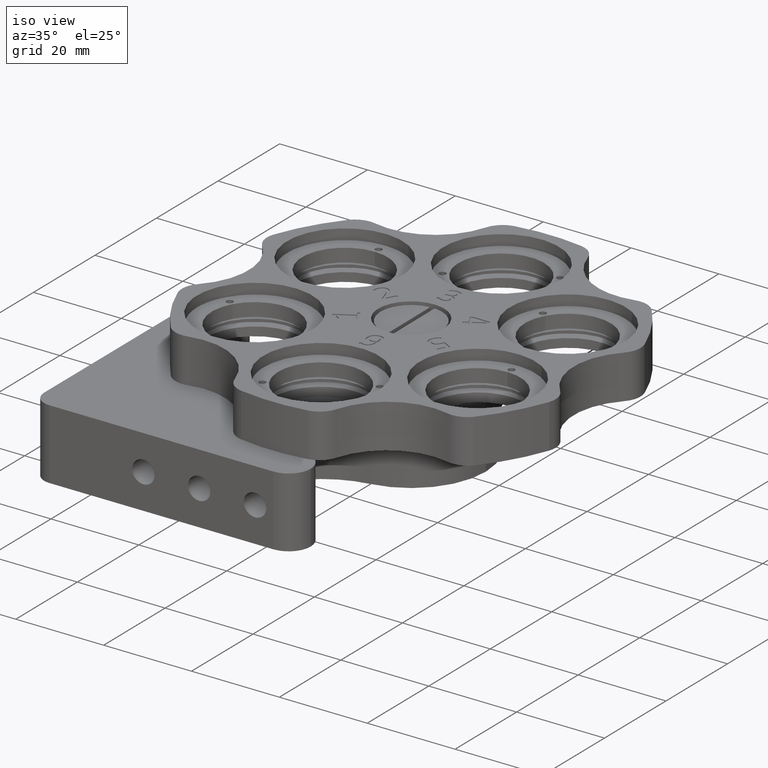
[diagram: clean part render]
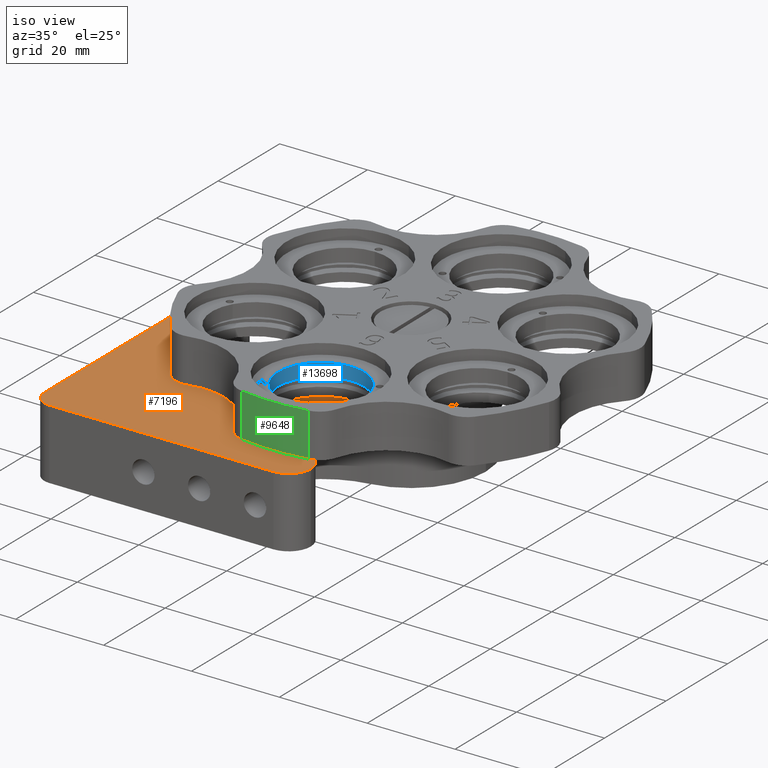
[diagram: same view with three faces highlighted in distinct colors, each labeled with its STEP entity id]
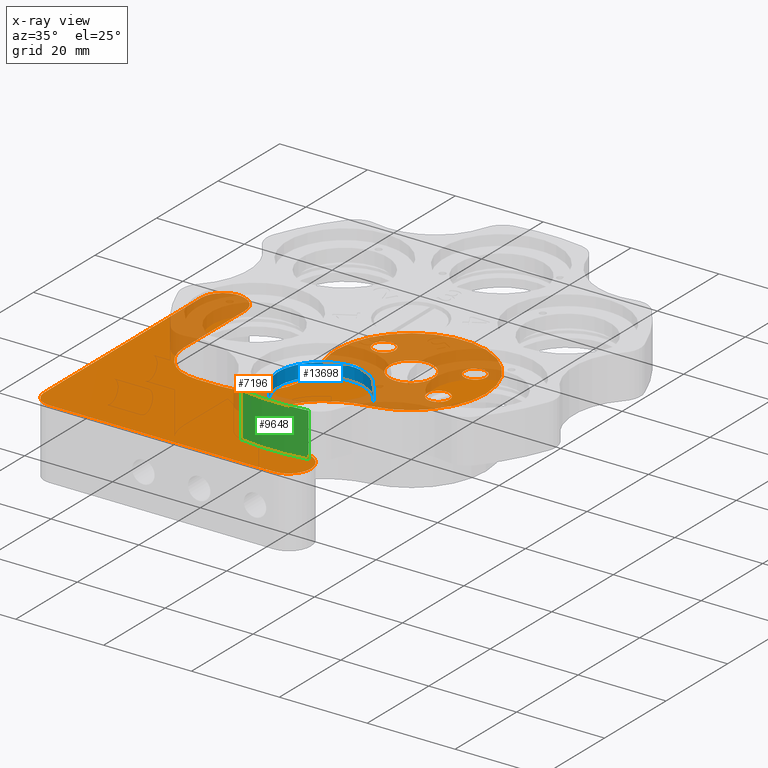
[diagram: x-ray of the same camera — body ghosted, the three highlighted faces saturated]
A machine part, iso view with three faces highlighted in distinct colors.
The next image is the same camera in x-ray (body ghosted, the three faces saturated) — at least one of them is partly hidden behind the body in this view.
Their STEP definitions:

[orange] entity #7196 — the highlighted planar face has unit normal (-0, 0, 1).
#22 = CIRCLE ( 'NONE', #4435, 11.00000000000001100 ) ;
#60 = CIRCLE ( 'NONE', #6774, 2.499999999999988500 ) ;
#175 = EDGE_CURVE ( 'NONE', #7244, #2872, #6194, .T. ) ;
#193 = CARTESIAN_POINT ( 'NONE',  ( 1.431146867680865900E-014, 2.135878279796443700E-014, 0.0000000000000000000 ) ) ;
#205 = VECTOR ( 'NONE', #5074, 1000.000000000000000 ) ;
#259 = VERTEX_POINT ( 'NONE', #12646 ) ;
#303 = ORIENTED_EDGE ( 'NONE', *, *, #8462, .T. ) ;
#333 = EDGE_CURVE ( 'NONE', #9003, #8045, #10346, .T. ) ;
#477 = AXIS2_PLACEMENT_3D ( 'NONE', #5836, #10488, #8127 ) ;
#486 = VERTEX_POINT ( 'NONE', #4787 ) ;
#516 = ORIENTED_EDGE ( 'NONE', *, *, #10180, .T. ) ;
#600 = CIRCLE ( 'NONE', #6399, 2.499999999999988500 ) ;
#641 = ORIENTED_EDGE ( 'NONE', *, *, #10589, .F. ) ;
#666 = ORIENTED_EDGE ( 'NONE', *, *, #2944, .T. ) ;
#691 = CARTESIAN_POINT ( 'NONE',  ( -30.80000000000005800, -25.64999999999993500, 0.0000000000000000000 ) ) ;
#693 = CARTESIAN_POINT ( 'NONE',  ( -50.79999999999999700, -46.79999999999999700, 0.0000000000000000000 ) ) ;
#767 = LINE ( 'NONE', #1230, #205 ) ;
#797 = VERTEX_POINT ( 'NONE', #5504 ) ;
#836 = DIRECTION ( 'NONE',  ( 1.000000000000000000, 0.0000000000000000000, 0.0000000000000000000 ) ) ;
#844 = CIRCLE ( 'NONE', #3546, 17.00000000000003600 ) ;
#898 = VERTEX_POINT ( 'NONE', #8040 ) ;
#906 = AXIS2_PLACEMENT_3D ( 'NONE', #5531, #10281, #9131 ) ;
#959 = DIRECTION ( 'NONE',  ( 1.000000000000000000, 0.0000000000000000000, 0.0000000000000000000 ) ) ;
#997 = DIRECTION ( 'NONE',  ( -0.0000000000000000000, 0.0000000000000000000, 1.000000000000000000 ) ) ;
#1169 = EDGE_CURVE ( 'NONE', #259, #797, #7308, .T. ) ;
#1191 = CIRCLE ( 'NONE', #10028, 2.499999999999988500 ) ;
#1230 = CARTESIAN_POINT ( 'NONE',  ( -16.91161726340155300, -40.80000000000001100, 0.0000000000000000000 ) ) ;
#1338 = AXIS2_PLACEMENT_3D ( 'NONE', #10203, #12676, #11510 ) ;
#1425 = CARTESIAN_POINT ( 'NONE',  ( 12.89230484541324500, 6.000000000000015100, 1.249098480898822200E-015 ) ) ;
#1495 = ORIENTED_EDGE ( 'NONE', *, *, #7318, .F. ) ;
#1554 = DIRECTION ( 'NONE',  ( 1.000000000000000000, 0.0000000000000000000, 0.0000000000000000000 ) ) ;
#1564 = DIRECTION ( 'NONE',  ( -0.0000000000000000000, 0.0000000000000000000, 1.000000000000000000 ) ) ;
#1586 = VERTEX_POINT ( 'NONE', #2921 ) ;
#1594 = DIRECTION ( 'NONE',  ( -0.0000000000000000000, 0.0000000000000000000, 1.000000000000000000 ) ) ;
#1637 = VERTEX_POINT ( 'NONE', #13608 ) ;
#1942 = EDGE_CURVE ( 'NONE', #3486, #2872, #767, .T. ) ;
#1953 = FACE_BOUND ( 'NONE', #4461, .T. ) ;
#2058 = EDGE_LOOP ( 'NONE', ( #5610, #2608 ) ) ;
#2144 = DIRECTION ( 'NONE',  ( -0.0000000000000000000, -0.0000000000000000000, 1.000000000000000000 ) ) ;
#2184 = DIRECTION ( 'NONE',  ( 1.000000000000000000, 0.0000000000000000000, 0.0000000000000000000 ) ) ;
#2264 = DIRECTION ( 'NONE',  ( 1.088453945710937700E-015, -1.000000000000000000, 0.0000000000000000000 ) ) ;
#2266 = CIRCLE ( 'NONE', #14074, 5.000000000000000900 ) ;
#2271 = CARTESIAN_POINT ( 'NONE',  ( 17.00000000000005000, 2.135878279796443700E-014, 0.0000000000000000000 ) ) ;
#2424 = ORIENTED_EDGE ( 'NONE', *, *, #175, .F. ) ;
#2453 = AXIS2_PLACEMENT_3D ( 'NONE', #12367, #13462, #3938 ) ;
#2593 = ORIENTED_EDGE ( 'NONE', *, *, #4320, .T. ) ;
#2608 = ORIENTED_EDGE ( 'NONE', *, *, #5533, .F. ) ;
#2683 = DIRECTION ( 'NONE',  ( 1.000000000000000000, 0.0000000000000000000, 0.0000000000000000000 ) ) ;
#2735 = CARTESIAN_POINT ( 'NONE',  ( -11.00000000000002300, -30.79999999999998600, 0.0000000000000000000 ) ) ;
#2741 = VERTEX_POINT ( 'NONE', #3510 ) ;
#2794 = VERTEX_POINT ( 'NONE', #3399 ) ;
#2813 = CARTESIAN_POINT ( 'NONE',  ( -34.33791815153536900, -13.78068855385882700, 0.0000000000000000000 ) ) ;
#2872 = VERTEX_POINT ( 'NONE', #4984 ) ;
#2921 = CARTESIAN_POINT ( 'NONE',  ( -7.892304845413268500, 6.000000000000015100, 1.249098480898822200E-015 ) ) ;
#2930 = CIRCLE ( 'NONE', #906, 5.000000000000000900 ) ;
#2944 = EDGE_CURVE ( 'NONE', #10674, #7579, #14895, .T. ) ;
#2949 = ORIENTED_EDGE ( 'NONE', *, *, #333, .T. ) ;
#2983 = LINE ( 'NONE', #8481, #15439 ) ;
#3107 = LINE ( 'NONE', #4755, #15186 ) ;
#3328 = CARTESIAN_POINT ( 'NONE',  ( -46.80000000000000400, -50.79999999999999000, 0.0000000000000000000 ) ) ;
#3337 = ORIENTED_EDGE ( 'NONE', *, *, #14518, .T. ) ;
#3383 = CARTESIAN_POINT ( 'NONE',  ( -25.37999999999998500, -25.64999999999994200, 0.0000000000000000000 ) ) ;
#3399 = CARTESIAN_POINT ( 'NONE',  ( -15.77688131286762600, -6.331667713935137200, 0.0000000000000000000 ) ) ;
#3404 = AXIS2_PLACEMENT_3D ( 'NONE', #9539, #997, #2184 ) ;
#3411 = CARTESIAN_POINT ( 'NONE',  ( 0.0000000000000000000, 0.0000000000000000000, 0.0000000000000000000 ) ) ;
#3442 = CARTESIAN_POINT ( 'NONE',  ( -40.80000000000005400, -91.60983450373431900, 0.0000000000000000000 ) ) ;
#3486 = VERTEX_POINT ( 'NONE', #11509 ) ;
#3510 = CARTESIAN_POINT ( 'NONE',  ( -5.000000000000000900, 0.0000000000000000000, 0.0000000000000000000 ) ) ;
#3546 = AXIS2_PLACEMENT_3D ( 'NONE', #193, #11105, #7422 ) ;
#3835 = DIRECTION ( 'NONE',  ( -0.0000000000000000000, -0.0000000000000000000, 1.000000000000000000 ) ) ;
#3869 = DIRECTION ( 'NONE',  ( -0.0000000000000000000, -0.0000000000000000000, 1.000000000000000000 ) ) ;
#3938 = DIRECTION ( 'NONE',  ( 1.000000000000000000, 0.0000000000000000000, 0.0000000000000000000 ) ) ;
#3964 = AXIS2_PLACEMENT_3D ( 'NONE', #8133, #6962, #836 ) ;
#4017 = ORIENTED_EDGE ( 'NONE', *, *, #13281, .F. ) ;
#4036 = DIRECTION ( 'NONE',  ( 1.000000000000000000, 0.0000000000000000000, 0.0000000000000000000 ) ) ;
#4046 = VECTOR ( 'NONE', #14660, 1000.000000000000000 ) ;
#4048 = AXIS2_PLACEMENT_3D ( 'NONE', #6785, #10729, #10836 ) ;
#4218 = DIRECTION ( 'NONE',  ( -0.0000000000000000000, -0.0000000000000000000, 1.000000000000000000 ) ) ;
#4219 = FACE_OUTER_BOUND ( 'NONE', #11861, .T. ) ;
#4265 = DIRECTION ( 'NONE',  ( 1.000000000000000000, 0.0000000000000000000, 0.0000000000000000000 ) ) ;
#4269 = DIRECTION ( 'NONE',  ( -0.0000000000000000000, 0.0000000000000000000, 1.000000000000000000 ) ) ;
#4270 = CIRCLE ( 'NONE', #10104, 19.99999999999996100 ) ;
#4275 = CARTESIAN_POINT ( 'NONE',  ( -25.37999999999998500, -14.64999999999992400, 0.0000000000000000000 ) ) ;
#4320 = EDGE_CURVE ( 'NONE', #8045, #13151, #14794, .T. ) ;
#4435 = AXIS2_PLACEMENT_3D ( 'NONE', #6996, #10527, #8224 ) ;
#4461 = EDGE_LOOP ( 'NONE', ( #15182, #516 ) ) ;
#4496 = ORIENTED_EDGE ( 'NONE', *, *, #11255, .F. ) ;
#4693 = CIRCLE ( 'NONE', #8846, 11.00000000000001600 ) ;
#4752 = CARTESIAN_POINT ( 'NONE',  ( -11.00000000000002300, -91.60983450373431900, 0.0000000000000000000 ) ) ;
#4755 = CARTESIAN_POINT ( 'NONE',  ( -16.91161726340140300, -25.64999999999994900, 0.0000000000000000000 ) ) ;
#4787 = CARTESIAN_POINT ( 'NONE',  ( -14.33791815153540700, -13.78068855385882700, 0.0000000000000000000 ) ) ;
#4805 = EDGE_CURVE ( 'NONE', #10177, #1637, #1191, .T. ) ;
#4984 = CARTESIAN_POINT ( 'NONE',  ( -1.000000000000021800, -40.79999999999999000, 0.0000000000000000000 ) ) ;
#4994 = ORIENTED_EDGE ( 'NONE', *, *, #9060, .T. ) ;
#5074 = DIRECTION ( 'NONE',  ( -1.000000000000000000, -1.334402673828312100E-015, 0.0000000000000000000 ) ) ;
#5133 = CARTESIAN_POINT ( 'NONE',  ( -10.39230484541325700, 6.000000000000015100, 1.249098480898822200E-015 ) ) ;
#5504 = CARTESIAN_POINT ( 'NONE',  ( -50.80000000000005400, 4.200000000000009100, 0.0000000000000000000 ) ) ;
#5531 = CARTESIAN_POINT ( 'NONE',  ( 0.0000000000000000000, 0.0000000000000000000, 0.0000000000000000000 ) ) ;
#5533 = EDGE_CURVE ( 'NONE', #13282, #1586, #600, .T. ) ;
#5610 = ORIENTED_EDGE ( 'NONE', *, *, #14614, .F. ) ;
#5623 = EDGE_CURVE ( 'NONE', #7244, #12718, #7400, .T. ) ;
#5713 = EDGE_CURVE ( 'NONE', #898, #8850, #9465, .T. ) ;
#5741 = ORIENTED_EDGE ( 'NONE', *, *, #1169, .T. ) ;
#5832 = ORIENTED_EDGE ( 'NONE', *, *, #12938, .F. ) ;
#5836 = CARTESIAN_POINT ( 'NONE',  ( 4.199999999999981500, -45.79999999999999000, 0.0000000000000000000 ) ) ;
#5929 = CARTESIAN_POINT ( 'NONE',  ( 5.000000000000000900, 6.123233995736767300E-016, 0.0000000000000000000 ) ) ;
#5973 = ORIENTED_EDGE ( 'NONE', *, *, #10959, .F. ) ;
#6133 = CIRCLE ( 'NONE', #13525, 9.999999999999998200 ) ;
#6194 = CIRCLE ( 'NONE', #6647, 10.00000000000000200 ) ;
#6277 = FACE_BOUND ( 'NONE', #8921, .T. ) ;
#6304 = CARTESIAN_POINT ( 'NONE',  ( -10.39230484541325700, -6.000000000000015100, 1.249098480898822200E-015 ) ) ;
#6342 = ORIENTED_EDGE ( 'NONE', *, *, #12876, .T. ) ;
#6399 = AXIS2_PLACEMENT_3D ( 'NONE', #10226, #4218, #9076 ) ;
#6515 = DIRECTION ( 'NONE',  ( -0.0000000000000000000, -0.0000000000000000000, 1.000000000000000000 ) ) ;
#6523 = EDGE_CURVE ( 'NONE', #7909, #12734, #3107, .T. ) ;
#6559 = CARTESIAN_POINT ( 'NONE',  ( 4.199999999999978000, -50.79999999999997600, 0.0000000000000000000 ) ) ;
#6571 = AXIS2_PLACEMENT_3D ( 'NONE', #8955, #6515, #1554 ) ;
#6637 = VECTOR ( 'NONE', #13260, 1000.000000000000000 ) ;
#6647 = AXIS2_PLACEMENT_3D ( 'NONE', #9902, #1564, #2683 ) ;
#6723 = CARTESIAN_POINT ( 'NONE',  ( 12.89230484541324500, -6.000000000000015100, 1.249098480898822200E-015 ) ) ;
#6743 = EDGE_LOOP ( 'NONE', ( #4017, #7119 ) ) ;
#6774 = AXIS2_PLACEMENT_3D ( 'NONE', #11084, #3869, #12302 ) ;
#6785 = CARTESIAN_POINT ( 'NONE',  ( -45.80000000000005400, 4.200000000000017100, 0.0000000000000000000 ) ) ;
#6962 = DIRECTION ( 'NONE',  ( -0.0000000000000000000, 0.0000000000000000000, 1.000000000000000000 ) ) ;
#6996 = CARTESIAN_POINT ( 'NONE',  ( -0.002681564368387998100, -29.29999999999997900, 0.0000000000000000000 ) ) ;
#7119 = ORIENTED_EDGE ( 'NONE', *, *, #5713, .F. ) ;
#7196 = ADVANCED_FACE ( 'NONE', ( #6277, #15538, #11943, #15159, #1953, #4219 ), #8759, .T. ) ;
#7244 = VERTEX_POINT ( 'NONE', #2735 ) ;
#7288 = DIRECTION ( 'NONE',  ( -1.000000000000000000, 1.280238727658143600E-015, 0.0000000000000000000 ) ) ;
#7308 = CIRCLE ( 'NONE', #4048, 4.999999999999997300 ) ;
#7318 = EDGE_CURVE ( 'NONE', #10674, #13855, #13444, .T. ) ;
#7400 = LINE ( 'NONE', #4752, #6637 ) ;
#7422 = DIRECTION ( 'NONE',  ( 1.000000000000000000, 0.0000000000000000000, 0.0000000000000000000 ) ) ;
#7546 = VERTEX_POINT ( 'NONE', #5929 ) ;
#7579 = VERTEX_POINT ( 'NONE', #2271 ) ;
#7748 = DIRECTION ( 'NONE',  ( -0.0000000000000000000, 0.0000000000000000000, 1.000000000000000000 ) ) ;
#7749 = DIRECTION ( 'NONE',  ( 1.000000000000000000, 0.0000000000000000000, 0.0000000000000000000 ) ) ;
#7753 = CIRCLE ( 'NONE', #13345, 17.00000000000003600 ) ;
#7820 = AXIS2_PLACEMENT_3D ( 'NONE', #6304, #3835, #12271 ) ;
#7886 = CARTESIAN_POINT ( 'NONE',  ( -14.43143337034554600, -15.71249176750572500, 0.0000000000000000000 ) ) ;
#7909 = VERTEX_POINT ( 'NONE', #3383 ) ;
#7927 = ORIENTED_EDGE ( 'NONE', *, *, #4805, .F. ) ;
#8040 = CARTESIAN_POINT ( 'NONE',  ( -12.89230484541324500, -6.000000000000015100, 1.249098480898822200E-015 ) ) ;
#8045 = VERTEX_POINT ( 'NONE', #3328 ) ;
#8127 = DIRECTION ( 'NONE',  ( 1.000000000000000000, 0.0000000000000000000, 0.0000000000000000000 ) ) ;
#8133 = CARTESIAN_POINT ( 'NONE',  ( -34.33791815153536900, -13.78068855385882700, 0.0000000000000000000 ) ) ;
#8224 = DIRECTION ( 'NONE',  ( 1.000000000000000000, 0.0000000000000000000, 0.0000000000000000000 ) ) ;
#8239 = VECTOR ( 'NONE', #15422, 1000.000000000000000 ) ;
#8339 = DIRECTION ( 'NONE',  ( 0.0000000000000000000, 0.0000000000000000000, -1.000000000000000000 ) ) ;
#8369 = ORIENTED_EDGE ( 'NONE', *, *, #1942, .T. ) ;
#8434 = EDGE_LOOP ( 'NONE', ( #5973, #4496 ) ) ;
#8462 = EDGE_CURVE ( 'NONE', #11674, #3486, #11551, .T. ) ;
#8481 = CARTESIAN_POINT ( 'NONE',  ( -50.79999999999994700, -91.60983450373436200, 0.0000000000000000000 ) ) ;
#8595 = ORIENTED_EDGE ( 'NONE', *, *, #6523, .T. ) ;
#8605 = ORIENTED_EDGE ( 'NONE', *, *, #9784, .F. ) ;
#8744 = CIRCLE ( 'NONE', #2453, 2.499999999999988500 ) ;
#8759 = PLANE ( 'NONE',  #14611 ) ;
#8846 = AXIS2_PLACEMENT_3D ( 'NONE', #4275, #10282, #15086 ) ;
#8850 = VERTEX_POINT ( 'NONE', #10477 ) ;
#8881 = EDGE_CURVE ( 'NONE', #13855, #12718, #22, .T. ) ;
#8921 = EDGE_LOOP ( 'NONE', ( #7927, #641 ) ) ;
#8939 = VERTEX_POINT ( 'NONE', #14475 ) ;
#8955 = CARTESIAN_POINT ( 'NONE',  ( 10.39230484541325700, 6.000000000000015100, 1.249098480898822200E-015 ) ) ;
#9003 = VERTEX_POINT ( 'NONE', #693 ) ;
#9060 = EDGE_CURVE ( 'NONE', #13151, #11674, #13580, .T. ) ;
#9076 = DIRECTION ( 'NONE',  ( 1.000000000000000000, 0.0000000000000000000, 0.0000000000000000000 ) ) ;
#9131 = DIRECTION ( 'NONE',  ( -1.000000000000000000, 0.0000000000000000000, 0.0000000000000000000 ) ) ;
#9342 = ORIENTED_EDGE ( 'NONE', *, *, #8881, .F. ) ;
#9381 = VERTEX_POINT ( 'NONE', #6723 ) ;
#9465 = CIRCLE ( 'NONE', #7820, 2.499999999999988500 ) ;
#9539 = CARTESIAN_POINT ( 'NONE',  ( 4.199999999999981500, -45.79999999999999000, 0.0000000000000000000 ) ) ;
#9647 = EDGE_CURVE ( 'NONE', #259, #10569, #10298, .T. ) ;
#9741 = AXIS2_PLACEMENT_3D ( 'NONE', #5133, #14515, #13664 ) ;
#9784 = EDGE_CURVE ( 'NONE', #486, #2794, #4270, .T. ) ;
#9877 = AXIS2_PLACEMENT_3D ( 'NONE', #10220, #7748, #10170 ) ;
#9902 = CARTESIAN_POINT ( 'NONE',  ( -1.000000000000024200, -30.79999999999998600, 0.0000000000000000000 ) ) ;
#10005 = DIRECTION ( 'NONE',  ( 1.000000000000000000, 0.0000000000000000000, 0.0000000000000000000 ) ) ;
#10028 = AXIS2_PLACEMENT_3D ( 'NONE', #11573, #14006, #4265 ) ;
#10086 = EDGE_CURVE ( 'NONE', #10569, #12734, #6133, .T. ) ;
#10104 = AXIS2_PLACEMENT_3D ( 'NONE', #2813, #1594, #4036 ) ;
#10170 = DIRECTION ( 'NONE',  ( 1.000000000000000000, 0.0000000000000000000, 0.0000000000000000000 ) ) ;
#10177 = VERTEX_POINT ( 'NONE', #1425 ) ;
#10180 = EDGE_CURVE ( 'NONE', #7546, #2741, #2930, .T. ) ;
#10203 = CARTESIAN_POINT ( 'NONE',  ( 1.431146867680865900E-014, 2.135878279796443700E-014, 0.0000000000000000000 ) ) ;
#10220 = CARTESIAN_POINT ( 'NONE',  ( -46.80000000000000400, -46.79999999999999700, 0.0000000000000000000 ) ) ;
#10221 = CARTESIAN_POINT ( 'NONE',  ( 5.219492312476295300, -36.62999999999998800, 0.0000000000000000000 ) ) ;
#10226 = CARTESIAN_POINT ( 'NONE',  ( -10.39230484541325700, 6.000000000000015100, 1.249098480898822200E-015 ) ) ;
#10281 = DIRECTION ( 'NONE',  ( 0.0000000000000000000, 0.0000000000000000000, -1.000000000000000000 ) ) ;
#10282 = DIRECTION ( 'NONE',  ( -0.0000000000000000000, 0.0000000000000000000, 1.000000000000000000 ) ) ;
#10298 = LINE ( 'NONE', #3442, #8239 ) ;
#10346 = CIRCLE ( 'NONE', #9877, 3.999999999999996400 ) ;
#10477 = CARTESIAN_POINT ( 'NONE',  ( -7.892304845413268500, -6.000000000000015100, 1.249098480898822200E-015 ) ) ;
#10480 = EDGE_CURVE ( 'NONE', #14132, #2794, #844, .T. ) ;
#10488 = DIRECTION ( 'NONE',  ( -0.0000000000000000000, 0.0000000000000000000, 1.000000000000000000 ) ) ;
#10527 = DIRECTION ( 'NONE',  ( -0.0000000000000000000, 0.0000000000000000000, 1.000000000000000000 ) ) ;
#10568 = CARTESIAN_POINT ( 'NONE',  ( 2.398145116543167100, -16.83000000000002000, 0.0000000000000000000 ) ) ;
#10569 = VERTEX_POINT ( 'NONE', #13512 ) ;
#10572 = CIRCLE ( 'NONE', #3964, 19.99999999999996100 ) ;
#10589 = EDGE_CURVE ( 'NONE', #1637, #10177, #12552, .T. ) ;
#10595 = DIRECTION ( 'NONE',  ( 1.000000000000000000, 0.0000000000000000000, 0.0000000000000000000 ) ) ;
#10674 = VERTEX_POINT ( 'NONE', #10568 ) ;
#10729 = DIRECTION ( 'NONE',  ( -0.0000000000000000000, 0.0000000000000000000, 1.000000000000000000 ) ) ;
#10790 = DIRECTION ( 'NONE',  ( -1.000000000000000000, 0.0000000000000000000, 0.0000000000000000000 ) ) ;
#10836 = DIRECTION ( 'NONE',  ( 1.000000000000000000, 0.0000000000000000000, 0.0000000000000000000 ) ) ;
#10852 = CARTESIAN_POINT ( 'NONE',  ( 9.199999999999979700, -45.79999999999999000, 0.0000000000000000000 ) ) ;
#10946 = CARTESIAN_POINT ( 'NONE',  ( -17.00000000000002100, 2.344068235651494100E-014, 0.0000000000000000000 ) ) ;
#10959 = EDGE_CURVE ( 'NONE', #9381, #8939, #60, .T. ) ;
#11084 = CARTESIAN_POINT ( 'NONE',  ( 10.39230484541325700, -6.000000000000015100, 1.249098480898822200E-015 ) ) ;
#11105 = DIRECTION ( 'NONE',  ( -0.0000000000000000000, 0.0000000000000000000, 1.000000000000000000 ) ) ;
#11217 = CARTESIAN_POINT ( 'NONE',  ( -16.91161726340148500, -91.60983450373431900, 0.0000000000000000000 ) ) ;
#11255 = EDGE_CURVE ( 'NONE', #8939, #9381, #8744, .T. ) ;
#11276 = ORIENTED_EDGE ( 'NONE', *, *, #9647, .F. ) ;
#11509 = CARTESIAN_POINT ( 'NONE',  ( 4.199999999999978000, -40.79999999999998300, 0.0000000000000000000 ) ) ;
#11510 = DIRECTION ( 'NONE',  ( 1.000000000000000000, 0.0000000000000000000, 0.0000000000000000000 ) ) ;
#11551 = CIRCLE ( 'NONE', #477, 4.999999999999997300 ) ;
#11573 = CARTESIAN_POINT ( 'NONE',  ( 10.39230484541325700, 6.000000000000015100, 1.249098480898822200E-015 ) ) ;
#11599 = ORIENTED_EDGE ( 'NONE', *, *, #15335, .F. ) ;
#11633 = CARTESIAN_POINT ( 'NONE',  ( -6.385338524956366300, -20.34111111111102200, 0.0000000000000000000 ) ) ;
#11674 = VERTEX_POINT ( 'NONE', #10852 ) ;
#11861 = EDGE_LOOP ( 'NONE', ( #3337, #2949, #2593, #4994, #303, #8369, #2424, #14523, #9342, #1495, #666, #6342, #13904, #8605, #5832, #11599, #8595, #12168, #11276, #5741 ) ) ;
#11943 = FACE_BOUND ( 'NONE', #6743, .T. ) ;
#12168 = ORIENTED_EDGE ( 'NONE', *, *, #10086, .F. ) ;
#12271 = DIRECTION ( 'NONE',  ( 1.000000000000000000, 0.0000000000000000000, 0.0000000000000000000 ) ) ;
#12302 = DIRECTION ( 'NONE',  ( 1.000000000000000000, 0.0000000000000000000, 0.0000000000000000000 ) ) ;
#12326 = DIRECTION ( 'NONE',  ( -0.0000000000000000000, 0.0000000000000000000, 1.000000000000000000 ) ) ;
#12335 = DIRECTION ( 'NONE',  ( -0.0000000000000000000, 0.0000000000000000000, 1.000000000000000000 ) ) ;
#12367 = CARTESIAN_POINT ( 'NONE',  ( 10.39230484541325700, -6.000000000000015100, 1.249098480898822200E-015 ) ) ;
#12482 = AXIS2_PLACEMENT_3D ( 'NONE', #10221, #4269, #7749 ) ;
#12552 = CIRCLE ( 'NONE', #6571, 2.499999999999988500 ) ;
#12646 = CARTESIAN_POINT ( 'NONE',  ( -40.80000000000005400, 4.200000000000009100, 0.0000000000000000000 ) ) ;
#12676 = DIRECTION ( 'NONE',  ( -0.0000000000000000000, 0.0000000000000000000, 1.000000000000000000 ) ) ;
#12718 = VERTEX_POINT ( 'NONE', #15193 ) ;
#12734 = VERTEX_POINT ( 'NONE', #691 ) ;
#12795 = CIRCLE ( 'NONE', #9741, 2.499999999999988500 ) ;
#12876 = EDGE_CURVE ( 'NONE', #7579, #14132, #7753, .T. ) ;
#12938 = EDGE_CURVE ( 'NONE', #13103, #486, #10572, .T. ) ;
#13103 = VERTEX_POINT ( 'NONE', #7886 ) ;
#13151 = VERTEX_POINT ( 'NONE', #6559 ) ;
#13260 = DIRECTION ( 'NONE',  ( 0.0000000000000000000, 1.000000000000000000, -0.0000000000000000000 ) ) ;
#13281 = EDGE_CURVE ( 'NONE', #8850, #898, #13966, .T. ) ;
#13282 = VERTEX_POINT ( 'NONE', #14089 ) ;
#13345 = AXIS2_PLACEMENT_3D ( 'NONE', #15401, #14181, #10595 ) ;
#13432 = CARTESIAN_POINT ( 'NONE',  ( -16.91161726340149600, -50.79999999999998300, 0.0000000000000000000 ) ) ;
#13444 = CIRCLE ( 'NONE', #12482, 19.99999999999996100 ) ;
#13462 = DIRECTION ( 'NONE',  ( -0.0000000000000000000, -0.0000000000000000000, 1.000000000000000000 ) ) ;
#13512 = CARTESIAN_POINT ( 'NONE',  ( -40.80000000000005400, -15.64999999999992800, 0.0000000000000000000 ) ) ;
#13525 = AXIS2_PLACEMENT_3D ( 'NONE', #13589, #12335, #13642 ) ;
#13580 = CIRCLE ( 'NONE', #3404, 4.999999999999997300 ) ;
#13589 = CARTESIAN_POINT ( 'NONE',  ( -30.80000000000005400, -15.64999999999992800, 0.0000000000000000000 ) ) ;
#13608 = CARTESIAN_POINT ( 'NONE',  ( 7.892304845413268500, 6.000000000000015100, 1.249098480898822200E-015 ) ) ;
#13642 = DIRECTION ( 'NONE',  ( 1.000000000000000000, 0.0000000000000000000, 0.0000000000000000000 ) ) ;
#13651 = AXIS2_PLACEMENT_3D ( 'NONE', #15367, #2144, #959 ) ;
#13664 = DIRECTION ( 'NONE',  ( 1.000000000000000000, 0.0000000000000000000, 0.0000000000000000000 ) ) ;
#13855 = VERTEX_POINT ( 'NONE', #11633 ) ;
#13904 = ORIENTED_EDGE ( 'NONE', *, *, #10480, .T. ) ;
#13966 = CIRCLE ( 'NONE', #13651, 2.499999999999988500 ) ;
#14006 = DIRECTION ( 'NONE',  ( -0.0000000000000000000, -0.0000000000000000000, 1.000000000000000000 ) ) ;
#14015 = EDGE_CURVE ( 'NONE', #2741, #7546, #2266, .T. ) ;
#14074 = AXIS2_PLACEMENT_3D ( 'NONE', #3411, #8339, #10790 ) ;
#14089 = CARTESIAN_POINT ( 'NONE',  ( -12.89230484541324500, 6.000000000000015100, 1.249098480898822200E-015 ) ) ;
#14132 = VERTEX_POINT ( 'NONE', #10946 ) ;
#14181 = DIRECTION ( 'NONE',  ( -0.0000000000000000000, 0.0000000000000000000, 1.000000000000000000 ) ) ;
#14475 = CARTESIAN_POINT ( 'NONE',  ( 7.892304845413268500, -6.000000000000015100, 1.249098480898822200E-015 ) ) ;
#14515 = DIRECTION ( 'NONE',  ( -0.0000000000000000000, -0.0000000000000000000, 1.000000000000000000 ) ) ;
#14518 = EDGE_CURVE ( 'NONE', #797, #9003, #2983, .T. ) ;
#14523 = ORIENTED_EDGE ( 'NONE', *, *, #5623, .T. ) ;
#14611 = AXIS2_PLACEMENT_3D ( 'NONE', #11217, #12326, #10005 ) ;
#14614 = EDGE_CURVE ( 'NONE', #1586, #13282, #12795, .T. ) ;
#14660 = DIRECTION ( 'NONE',  ( 1.000000000000000000, 2.721134864277345600E-016, 0.0000000000000000000 ) ) ;
#14794 = LINE ( 'NONE', #13432, #4046 ) ;
#14895 = CIRCLE ( 'NONE', #1338, 17.00000000000003600 ) ;
#15086 = DIRECTION ( 'NONE',  ( 1.000000000000000000, 0.0000000000000000000, 0.0000000000000000000 ) ) ;
#15159 = FACE_BOUND ( 'NONE', #2058, .T. ) ;
#15182 = ORIENTED_EDGE ( 'NONE', *, *, #14015, .T. ) ;
#15186 = VECTOR ( 'NONE', #7288, 1000.000000000000000 ) ;
#15193 = CARTESIAN_POINT ( 'NONE',  ( -11.00000000000002300, -29.54287285833695600, 0.0000000000000000000 ) ) ;
#15335 = EDGE_CURVE ( 'NONE', #7909, #13103, #4693, .T. ) ;
#15367 = CARTESIAN_POINT ( 'NONE',  ( -10.39230484541325700, -6.000000000000015100, 1.249098480898822200E-015 ) ) ;
#15401 = CARTESIAN_POINT ( 'NONE',  ( 1.431146867680865900E-014, 2.135878279796443700E-014, 0.0000000000000000000 ) ) ;
#15422 = DIRECTION ( 'NONE',  ( 0.0000000000000000000, -1.000000000000000000, 0.0000000000000000000 ) ) ;
#15439 = VECTOR ( 'NONE', #2264, 1000.000000000000000 ) ;
#15538 = FACE_BOUND ( 'NONE', #8434, .T. ) ;

[blue] entity #13698 — the highlighted cylindrical surface (partial cylindrical patch) has radius 9.75 mm, axis along (0, -0, -1).
#143 = VECTOR ( 'NONE', #8115, 1000.000000000000000 ) ;
#388 = EDGE_CURVE ( 'NONE', #1451, #7660, #2051, .T. ) ;
#1451 = VERTEX_POINT ( 'NONE', #14468 ) ;
#2051 = LINE ( 'NONE', #8167, #143 ) ;
#2147 = DIRECTION ( 'NONE',  ( 1.060540212046009800E-016, -6.123031769111935600E-017, -1.000000000000000000 ) ) ;
#2280 = CYLINDRICAL_SURFACE ( 'NONE', #2474, 9.750000000000104800 ) ;
#2474 = AXIS2_PLACEMENT_3D ( 'NONE', #7044, #2147, #7445 ) ;
#3072 = VERTEX_POINT ( 'NONE', #11660 ) ;
#3935 = ORIENTED_EDGE ( 'NONE', *, *, #388, .T. ) ;
#4337 = EDGE_CURVE ( 'NONE', #12843, #1451, #15175, .T. ) ;
#4676 = ORIENTED_EDGE ( 'NONE', *, *, #5328, .F. ) ;
#4960 = DIRECTION ( 'NONE',  ( -1.060540212046009800E-016, 6.123031769111935600E-017, 1.000000000000000000 ) ) ;
#5136 = VECTOR ( 'NONE', #10119, 1000.000000000000000 ) ;
#5328 = EDGE_CURVE ( 'NONE', #12843, #3072, #9479, .T. ) ;
#7044 = CARTESIAN_POINT ( 'NONE',  ( 6.663837945789326200E-013, -29.30000000000000400, 8.600000000000008500 ) ) ;
#7047 = CIRCLE ( 'NONE', #14099, 9.750000000000104800 ) ;
#7361 = EDGE_CURVE ( 'NONE', #3072, #7660, #7047, .T. ) ;
#7445 = DIRECTION ( 'NONE',  ( 0.8660254037844399300, 0.4999999999999978900, 0.0000000000000000000 ) ) ;
#7660 = VERTEX_POINT ( 'NONE', #14473 ) ;
#7894 = ORIENTED_EDGE ( 'NONE', *, *, #7361, .F. ) ;
#8115 = DIRECTION ( 'NONE',  ( 1.060540212046009800E-016, -6.123031769111935600E-017, -1.000000000000000000 ) ) ;
#8167 = CARTESIAN_POINT ( 'NONE',  ( -8.443747686897712200, -34.17500000000004000, 8.600000000000008500 ) ) ;
#8520 = CARTESIAN_POINT ( 'NONE',  ( 6.663837945789326200E-013, -29.30000000000000400, 8.600000000000008500 ) ) ;
#9479 = LINE ( 'NONE', #12592, #5136 ) ;
#9613 = FACE_OUTER_BOUND ( 'NONE', #11749, .T. ) ;
#9817 = DIRECTION ( 'NONE',  ( -0.8660254037844396000, -0.4999999999999981100, 0.0000000000000000000 ) ) ;
#10119 = DIRECTION ( 'NONE',  ( 1.060540212046009800E-016, -6.123031769111935600E-017, -1.000000000000000000 ) ) ;
#10474 = DIRECTION ( 'NONE',  ( -1.060540212046009800E-016, 6.123031769111935600E-017, 1.000000000000000000 ) ) ;
#11660 = CARTESIAN_POINT ( 'NONE',  ( 8.443747686898964500, -24.42500000000001500, 5.600000000000010300 ) ) ;
#11749 = EDGE_LOOP ( 'NONE', ( #15285, #3935, #7894, #4676 ) ) ;
#12558 = CARTESIAN_POINT ( 'NONE',  ( 8.443747686898955600, -24.42500000000002200, 8.600000000000008500 ) ) ;
#12592 = CARTESIAN_POINT ( 'NONE',  ( 8.443747686899046200, -24.42499999999997200, 8.600000000000008500 ) ) ;
#12843 = VERTEX_POINT ( 'NONE', #12558 ) ;
#13146 = AXIS2_PLACEMENT_3D ( 'NONE', #8520, #4960, #9817 ) ;
#13698 = ADVANCED_FACE ( 'NONE', ( #9613 ), #2280, .F. ) ;
#14099 = AXIS2_PLACEMENT_3D ( 'NONE', #14109, #10474, #14166 ) ;
#14109 = CARTESIAN_POINT ( 'NONE',  ( 6.742135296362321500E-013, -29.30000000000000100, 5.600000000000009400 ) ) ;
#14166 = DIRECTION ( 'NONE',  ( -0.8660254037844399300, -0.4999999999999978900, -8.896017825521992000E-017 ) ) ;
#14468 = CARTESIAN_POINT ( 'NONE',  ( -8.443747686897621600, -34.17499999999998300, 8.600000000000008500 ) ) ;
#14473 = CARTESIAN_POINT ( 'NONE',  ( -8.443747686897614500, -34.17499999999998300, 5.600000000000008500 ) ) ;
#15175 = CIRCLE ( 'NONE', #13146, 9.750000000000108400 ) ;
#15285 = ORIENTED_EDGE ( 'NONE', *, *, #4337, .T. ) ;

[green] entity #9648 — the highlighted cylindrical surface (partial cylindrical patch) has radius 45 mm, axis along (0, 0, -1).
#405 = CIRCLE ( 'NONE', #8779, 45.00000000000051900 ) ;
#421 = CARTESIAN_POINT ( 'NONE',  ( 0.0000000000000000000, 1.224606353822385100E-015, 1.000000000000008700 ) ) ;
#972 = CARTESIAN_POINT ( 'NONE',  ( -7.655384703306613600, -44.34405354773543500, 1.000000000000003300 ) ) ;
#1120 = AXIS2_PLACEMENT_3D ( 'NONE', #2149, #14155, #15527 ) ;
#1428 = FACE_OUTER_BOUND ( 'NONE', #8909, .T. ) ;
#1605 = CIRCLE ( 'NONE', #2540, 45.00000000000051900 ) ;
#1951 = DIRECTION ( 'NONE',  ( -0.4999999999999949500, -0.8660254037844415900, -1.060108790874703200E-016 ) ) ;
#2149 = CARTESIAN_POINT ( 'NONE',  ( -6.473728620182572600E-030, 6.162975822039154700E-030, 11.00000000000001100 ) ) ;
#2540 = AXIS2_PLACEMENT_3D ( 'NONE', #9226, #4586, #10534 ) ;
#3170 = EDGE_CURVE ( 'NONE', #7826, #4904, #12819, .T. ) ;
#3421 = EDGE_CURVE ( 'NONE', #4893, #7863, #14326, .T. ) ;
#4586 = DIRECTION ( 'NONE',  ( 6.496170204596893800E-031, 1.224606353822374800E-016, -1.000000000000000000 ) ) ;
#4893 = VERTEX_POINT ( 'NONE', #8217 ) ;
#4904 = VERTEX_POINT ( 'NONE', #972 ) ;
#5404 = CARTESIAN_POINT ( 'NONE',  ( 7.655384703307132300, -44.34405354773522800, 1.000000000000003300 ) ) ;
#5826 = VECTOR ( 'NONE', #14453, 1000.000000000000000 ) ;
#6121 = ORIENTED_EDGE ( 'NONE', *, *, #3170, .T. ) ;
#6123 = ORIENTED_EDGE ( 'NONE', *, *, #3421, .F. ) ;
#7024 = CARTESIAN_POINT ( 'NONE',  ( -7.655384703306613600, -44.34405354773544200, 10.99999999999992000 ) ) ;
#7826 = VERTEX_POINT ( 'NONE', #10362 ) ;
#7830 = DIRECTION ( 'NONE',  ( 6.496170204596893800E-031, 1.224606353822374800E-016, -1.000000000000000000 ) ) ;
#7863 = VERTEX_POINT ( 'NONE', #5404 ) ;
#8217 = CARTESIAN_POINT ( 'NONE',  ( 7.655384703307139400, -44.34405354773525700, 11.00000000000000400 ) ) ;
#8757 = EDGE_CURVE ( 'NONE', #7863, #4904, #405, .T. ) ;
#8779 = AXIS2_PLACEMENT_3D ( 'NONE', #421, #8867, #1951 ) ;
#8867 = DIRECTION ( 'NONE',  ( 6.496170204596893800E-031, 1.224606353822374800E-016, -1.000000000000000000 ) ) ;
#8909 = EDGE_LOOP ( 'NONE', ( #12572, #6123, #12968, #6121 ) ) ;
#9226 = CARTESIAN_POINT ( 'NONE',  ( -6.473728620182572600E-030, 6.162975822039154700E-030, 11.00000000000001100 ) ) ;
#9648 = ADVANCED_FACE ( 'NONE', ( #1428 ), #12566, .T. ) ;
#10275 = EDGE_CURVE ( 'NONE', #4893, #7826, #1605, .T. ) ;
#10362 = CARTESIAN_POINT ( 'NONE',  ( -7.655384703306613600, -44.34405354773544200, 10.99999999999992000 ) ) ;
#10534 = DIRECTION ( 'NONE',  ( -0.4999999999999949500, -0.8660254037844415900, -1.156482317317858200E-016 ) ) ;
#11110 = VECTOR ( 'NONE', #7830, 1000.000000000000000 ) ;
#12514 = CARTESIAN_POINT ( 'NONE',  ( 7.655384703307139400, -44.34405354773525700, 11.00000000000000400 ) ) ;
#12566 = CYLINDRICAL_SURFACE ( 'NONE', #1120, 45.00000000000051900 ) ;
#12572 = ORIENTED_EDGE ( 'NONE', *, *, #8757, .F. ) ;
#12819 = LINE ( 'NONE', #7024, #5826 ) ;
#12968 = ORIENTED_EDGE ( 'NONE', *, *, #10275, .T. ) ;
#14155 = DIRECTION ( 'NONE',  ( 6.496170204596893800E-031, 1.224606353822374800E-016, -1.000000000000000000 ) ) ;
#14326 = LINE ( 'NONE', #12514, #11110 ) ;
#14453 = DIRECTION ( 'NONE',  ( 6.496170204596893800E-031, 1.224606353822374800E-016, -1.000000000000000000 ) ) ;
#15527 = DIRECTION ( 'NONE',  ( -0.4999999999999949500, -0.8660254037844415900, -1.156482317317858200E-016 ) ) ;